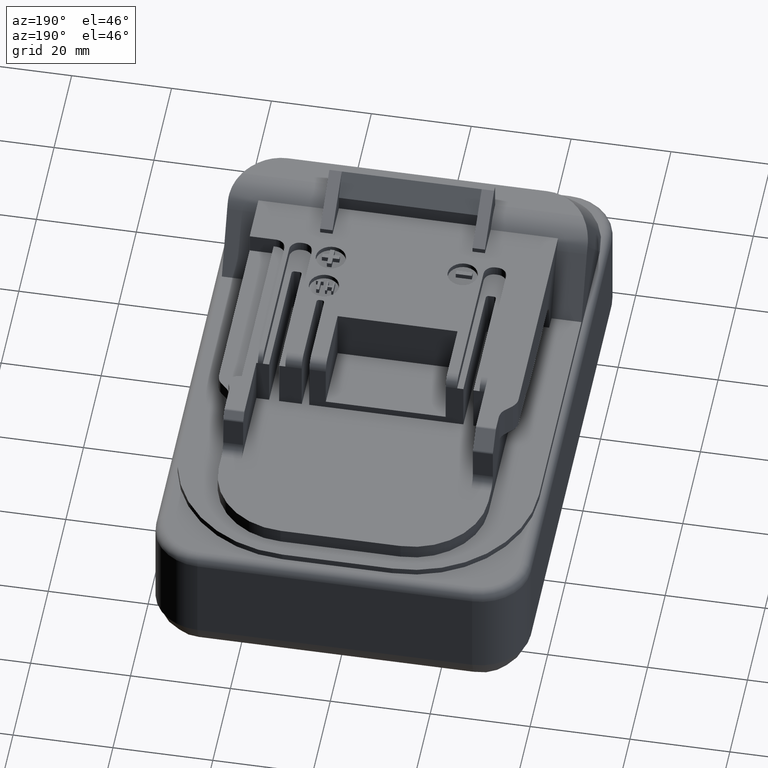
[diagram: clean part render]
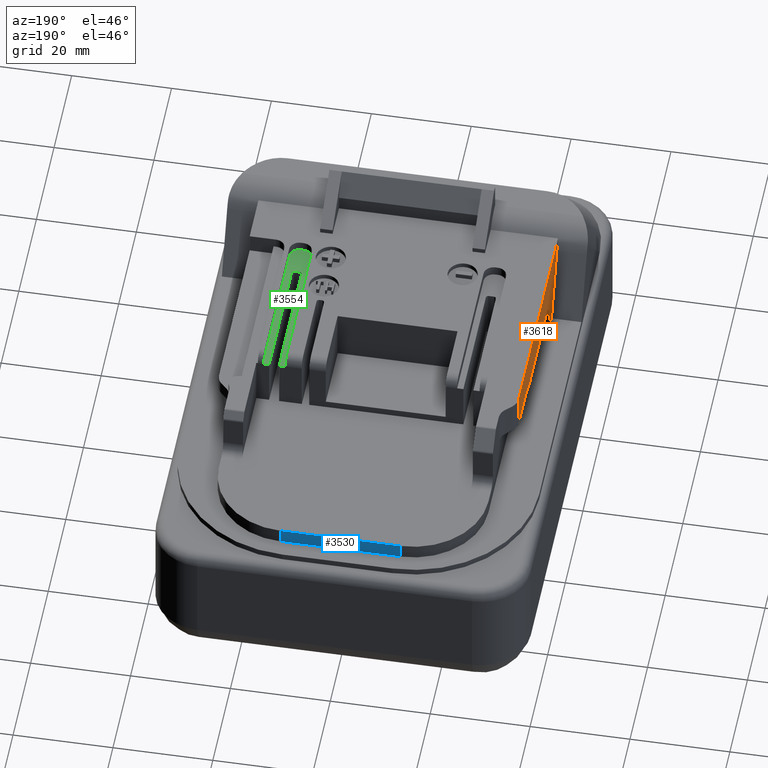
[diagram: same view with three faces highlighted in distinct colors, each labeled with its STEP entity id]
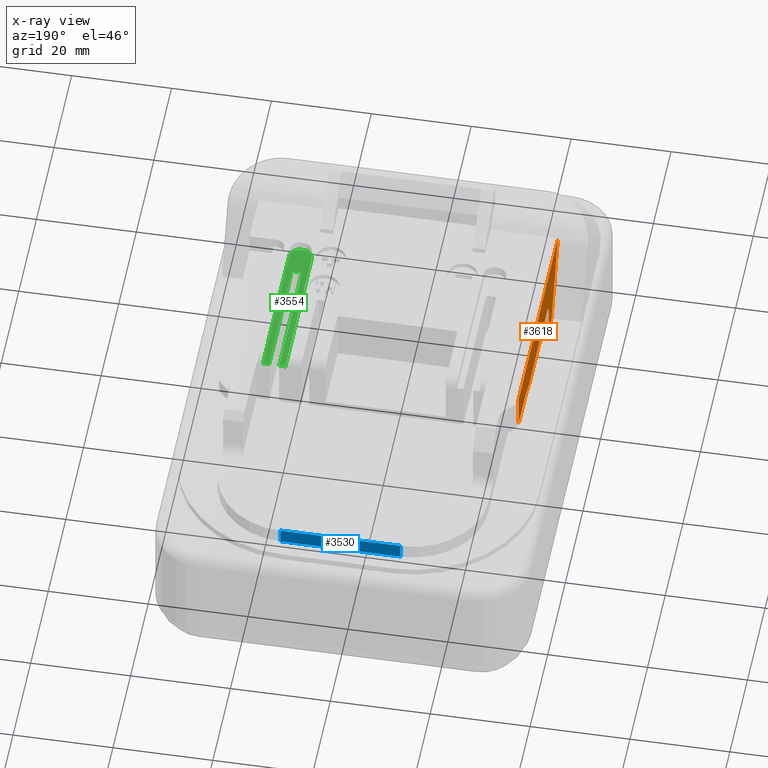
[diagram: x-ray of the same camera — body ghosted, the three highlighted faces saturated]
A machine part, auxiliary view with three faces highlighted in distinct colors.
The next image is the same camera in x-ray (body ghosted, the three faces saturated) — at least one of them is partly hidden behind the body in this view.
Their STEP definitions:

[orange] entity #3618 — the highlighted planar face has unit normal (1, 0, 0).
#123=PLANE('',#3941);
#397=LINE('',#5689,#801);
#401=LINE('',#5696,#805);
#407=LINE('',#5710,#811);
#410=LINE('',#5717,#814);
#411=LINE('',#5720,#815);
#417=LINE('',#5747,#821);
#487=LINE('',#5940,#891);
#488=LINE('',#5944,#892);
#801=VECTOR('',#4574,1.);
#805=VECTOR('',#4580,1.);
#811=VECTOR('',#4590,1.);
#814=VECTOR('',#4597,1.00000000000006);
#815=VECTOR('',#4600,1.);
#821=VECTOR('',#4622,1.00000000000006);
#891=VECTOR('',#4830,1.);
#892=VECTOR('',#4835,1.);
#1175=FACE_OUTER_BOUND('',#1372,.T.);
#1372=EDGE_LOOP('',(#3193,#3194,#3195,#3196,#3197,#3198,#3199,#3200,#3201,
#3202));
#1507=CIRCLE('',#3866,3.);
#1535=CIRCLE('',#3942,7.);
#1768=VERTEX_POINT('',#5686);
#1769=VERTEX_POINT('',#5688);
#1771=VERTEX_POINT('',#5694);
#1776=VERTEX_POINT('',#5707);
#1777=VERTEX_POINT('',#5709);
#1779=VERTEX_POINT('',#5715);
#1780=VERTEX_POINT('',#5719);
#1785=VERTEX_POINT('',#5745);
#1839=VERTEX_POINT('',#5938);
#1840=VERTEX_POINT('',#5942);
#2200=EDGE_CURVE('',#1768,#1769,#397,.T.);
#2204=EDGE_CURVE('',#1771,#1768,#401,.T.);
#2211=EDGE_CURVE('',#1776,#1777,#407,.T.);
#2215=EDGE_CURVE('',#1779,#1776,#410,.F.);
#2216=EDGE_CURVE('',#1780,#1779,#411,.T.);
#2220=EDGE_CURVE('',#1780,#1769,#1507,.T.);
#2227=EDGE_CURVE('',#1771,#1785,#417,.T.);
#2323=EDGE_CURVE('',#1777,#1839,#487,.T.);
#2324=EDGE_CURVE('',#1785,#1840,#1535,.F.);
#2325=EDGE_CURVE('',#1839,#1840,#488,.T.);
#3193=ORIENTED_EDGE('',*,*,#2200,.F.);
#3194=ORIENTED_EDGE('',*,*,#2204,.F.);
#3195=ORIENTED_EDGE('',*,*,#2227,.T.);
#3196=ORIENTED_EDGE('',*,*,#2324,.T.);
#3197=ORIENTED_EDGE('',*,*,#2325,.F.);
#3198=ORIENTED_EDGE('',*,*,#2323,.F.);
#3199=ORIENTED_EDGE('',*,*,#2211,.F.);
#3200=ORIENTED_EDGE('',*,*,#2215,.F.);
#3201=ORIENTED_EDGE('',*,*,#2216,.F.);
#3202=ORIENTED_EDGE('',*,*,#2220,.T.);
#3618=ADVANCED_FACE('',(#1175),#123,.F.);
#3866=AXIS2_PLACEMENT_3D('',#5726,#4607,#4608);
#3941=AXIS2_PLACEMENT_3D('',#5941,#4831,#4832);
#3942=AXIS2_PLACEMENT_3D('',#5943,#4833,#4834);
#4574=DIRECTION('',(0.,0.,1.));
#4580=DIRECTION('',(0.,1.,0.));
#4590=DIRECTION('',(0.,1.,0.));
#4597=DIRECTION('',(0.,-0.965925826288944,-0.258819045102985));
#4600=DIRECTION('',(0.,1.,0.));
#4607=DIRECTION('center_axis',(1.,0.,0.));
#4608=DIRECTION('ref_axis',(0.,-1.,0.));
#4622=DIRECTION('',(0.,-0.425797036329976,0.904818702200949));
#4830=DIRECTION('',(0.,0.,1.));
#4831=DIRECTION('center_axis',(1.,0.,0.));
#4832=DIRECTION('ref_axis',(0.,1.,0.));
#4833=DIRECTION('center_axis',(-1.,0.,0.));
#4834=DIRECTION('ref_axis',(0.,1.,0.));
#4835=DIRECTION('',(0.,-1.,0.));
#5686=CARTESIAN_POINT('',(-30.,141.6,29.3));
#5688=CARTESIAN_POINT('',(-30.,141.6,33.3));
#5689=CARTESIAN_POINT('',(-30.,141.6,31.3));
#5694=CARTESIAN_POINT('',(-30.,139.,29.3));
#5696=CARTESIAN_POINT('',(-30.,140.3,29.3));
#5707=CARTESIAN_POINT('',(-30.,168.5,37.5));
#5709=CARTESIAN_POINT('',(-30.,176.2573593129,37.5));
#5710=CARTESIAN_POINT('',(-30.,172.3786796564,37.5));
#5715=CARTESIAN_POINT('',(-30.,164.02153903092,36.3));
#5717=CARTESIAN_POINT('',(-30.,166.26076951546,36.9));
#5719=CARTESIAN_POINT('',(-30.,144.6,36.3));
#5720=CARTESIAN_POINT('',(-30.,154.31076951546,36.3));
#5726=CARTESIAN_POINT('Origin',(-30.,144.6,33.3));
#5745=CARTESIAN_POINT('',(-30.,132.8914921156,42.2805792543));
#5747=CARTESIAN_POINT('',(-30.,135.9457460578,35.7902896272));
#5938=CARTESIAN_POINT('',(-30.,176.2573593129,44.3));
#5940=CARTESIAN_POINT('',(-30.,176.2573593129,40.9));
#5941=CARTESIAN_POINT('Origin',(-30.,159.,-17.));
#5942=CARTESIAN_POINT('',(-30.,131.4567406858,44.3));
#5943=CARTESIAN_POINT('Origin',(-30.,126.5577612002,39.3));
#5944=CARTESIAN_POINT('',(-30.,153.85704999933,44.3));

[blue] entity #3530 — the highlighted planar face has unit normal (0, -1, 0).
#65=PLANE('',#3796);
#276=LINE('',#5371,#680);
#277=LINE('',#5374,#681);
#278=LINE('',#5376,#682);
#279=LINE('',#5377,#683);
#680=VECTOR('',#4329,1.);
#681=VECTOR('',#4332,1.);
#682=VECTOR('',#4333,1.);
#683=VECTOR('',#4334,1.);
#1087=FACE_OUTER_BOUND('',#1280,.T.);
#1280=EDGE_LOOP('',(#2678,#2679,#2680,#2681));
#1653=VERTEX_POINT('',#5367);
#1654=VERTEX_POINT('',#5369);
#1655=VERTEX_POINT('',#5373);
#1656=VERTEX_POINT('',#5375);
#2051=EDGE_CURVE('',#1654,#1653,#276,.F.);
#2052=EDGE_CURVE('',#1655,#1654,#277,.T.);
#2053=EDGE_CURVE('',#1655,#1656,#278,.F.);
#2054=EDGE_CURVE('',#1656,#1653,#279,.T.);
#2678=ORIENTED_EDGE('',*,*,#2051,.F.);
#2679=ORIENTED_EDGE('',*,*,#2052,.F.);
#2680=ORIENTED_EDGE('',*,*,#2053,.T.);
#2681=ORIENTED_EDGE('',*,*,#2054,.T.);
#3530=ADVANCED_FACE('',(#1087),#65,.F.);
#3796=AXIS2_PLACEMENT_3D('',#5372,#4330,#4331);
#4329=DIRECTION('',(0.,0.,-1.));
#4330=DIRECTION('center_axis',(0.,-1.,0.));
#4331=DIRECTION('ref_axis',(0.,0.,-1.));
#4332=DIRECTION('',(1.,0.,0.));
#4333=DIRECTION('',(0.,0.,-1.));
#4334=DIRECTION('',(1.,0.,0.));
#5367=CARTESIAN_POINT('',(12.,208.5,32.3));
#5369=CARTESIAN_POINT('',(12.,208.5,29.3));
#5371=CARTESIAN_POINT('',(12.,208.5,30.8));
#5372=CARTESIAN_POINT('Origin',(0.,208.5,32.3));
#5373=CARTESIAN_POINT('',(-12.,208.5,29.3));
#5374=CARTESIAN_POINT('',(1.7763568394E-15,208.5,29.3));
#5375=CARTESIAN_POINT('',(-12.,208.5,32.3));
#5376=CARTESIAN_POINT('',(-12.,208.5,36.8));
#5377=CARTESIAN_POINT('',(0.,208.5,32.3));

[green] entity #3554 — the highlighted planar face has unit normal (0, 0, 1).
#83=PLANE('',#3833);
#243=LINE('',#5279,#647);
#245=LINE('',#5288,#649);
#249=LINE('',#5300,#653);
#353=LINE('',#5577,#757);
#355=LINE('',#5581,#759);
#356=LINE('',#5583,#760);
#357=LINE('',#5587,#761);
#358=LINE('',#5590,#762);
#647=VECTOR('',#4244,1.);
#649=VECTOR('',#4254,1.);
#653=VECTOR('',#4266,1.);
#757=VECTOR('',#4480,1.);
#759=VECTOR('',#4484,1.);
#760=VECTOR('',#4485,1.);
#761=VECTOR('',#4488,1.);
#762=VECTOR('',#4491,1.);
#1111=FACE_OUTER_BOUND('',#1308,.T.);
#1308=EDGE_LOOP('',(#2833,#2834,#2835,#2836,#2837,#2838,#2839,#2840,#2841,
#2842,#2843,#2844));
#1470=CIRCLE('',#3772,0.5);
#1472=CIRCLE('',#3776,0.5);
#1492=CIRCLE('',#3834,2.);
#1493=CIRCLE('',#3835,2.);
#1619=VERTEX_POINT('',#5273);
#1621=VERTEX_POINT('',#5277);
#1623=VERTEX_POINT('',#5282);
#1624=VERTEX_POINT('',#5287);
#1627=VERTEX_POINT('',#5294);
#1628=VERTEX_POINT('',#5299);
#1726=VERTEX_POINT('',#5576);
#1727=VERTEX_POINT('',#5580);
#1728=VERTEX_POINT('',#5582);
#1729=VERTEX_POINT('',#5584);
#1730=VERTEX_POINT('',#5586);
#1731=VERTEX_POINT('',#5588);
#2005=EDGE_CURVE('',#1621,#1619,#243,.T.);
#2008=EDGE_CURVE('',#1623,#1619,#1470,.F.);
#2009=EDGE_CURVE('',#1623,#1624,#245,.T.);
#2014=EDGE_CURVE('',#1627,#1624,#1472,.F.);
#2015=EDGE_CURVE('',#1628,#1627,#249,.T.);
#2144=EDGE_CURVE('',#1726,#1628,#353,.T.);
#2146=EDGE_CURVE('',#1621,#1727,#355,.T.);
#2147=EDGE_CURVE('',#1727,#1728,#356,.F.);
#2148=EDGE_CURVE('',#1728,#1729,#1492,.F.);
#2149=EDGE_CURVE('',#1729,#1730,#357,.T.);
#2150=EDGE_CURVE('',#1730,#1731,#1493,.F.);
#2151=EDGE_CURVE('',#1731,#1726,#358,.F.);
#2833=ORIENTED_EDGE('',*,*,#2008,.T.);
#2834=ORIENTED_EDGE('',*,*,#2005,.F.);
#2835=ORIENTED_EDGE('',*,*,#2146,.T.);
#2836=ORIENTED_EDGE('',*,*,#2147,.T.);
#2837=ORIENTED_EDGE('',*,*,#2148,.T.);
#2838=ORIENTED_EDGE('',*,*,#2149,.T.);
#2839=ORIENTED_EDGE('',*,*,#2150,.T.);
#2840=ORIENTED_EDGE('',*,*,#2151,.T.);
#2841=ORIENTED_EDGE('',*,*,#2144,.T.);
#2842=ORIENTED_EDGE('',*,*,#2015,.T.);
#2843=ORIENTED_EDGE('',*,*,#2014,.T.);
#2844=ORIENTED_EDGE('',*,*,#2009,.F.);
#3554=ADVANCED_FACE('',(#1111),#83,.T.);
#3772=AXIS2_PLACEMENT_3D('',#5285,#4250,#4251);
#3776=AXIS2_PLACEMENT_3D('',#5297,#4262,#4263);
#3833=AXIS2_PLACEMENT_3D('',#5579,#4482,#4483);
#3834=AXIS2_PLACEMENT_3D('',#5585,#4486,#4487);
#3835=AXIS2_PLACEMENT_3D('',#5589,#4489,#4490);
#4244=DIRECTION('',(0.,-1.,0.));
#4250=DIRECTION('center_axis',(0.,0.,1.));
#4251=DIRECTION('ref_axis',(-1.,0.,0.));
#4254=DIRECTION('',(1.,0.,0.));
#4262=DIRECTION('center_axis',(0.,0.,1.));
#4263=DIRECTION('ref_axis',(-1.,0.,0.));
#4266=DIRECTION('',(0.,-1.,0.));
#4480=DIRECTION('',(-1.,0.,0.));
#4482=DIRECTION('center_axis',(0.,0.,1.));
#4483=DIRECTION('ref_axis',(1.,0.,0.));
#4484=DIRECTION('',(-1.,0.,0.));
#4485=DIRECTION('',(0.,1.,0.));
#4486=DIRECTION('center_axis',(0.,0.,-1.));
#4487=DIRECTION('ref_axis',(1.,0.,0.));
#4488=DIRECTION('',(1.,0.,0.));
#4489=DIRECTION('center_axis',(0.,0.,-1.));
#4490=DIRECTION('ref_axis',(1.,0.,0.));
#4491=DIRECTION('',(0.,-1.,0.));
#5273=CARTESIAN_POINT('',(18.45,148.,42.3));
#5277=CARTESIAN_POINT('',(18.45,173.5,42.3));
#5279=CARTESIAN_POINT('',(18.45,160.75,42.3));
#5282=CARTESIAN_POINT('',(18.95,147.5,42.3));
#5285=CARTESIAN_POINT('Origin',(18.95,148.,42.3));
#5287=CARTESIAN_POINT('',(19.95,147.5,42.3));
#5288=CARTESIAN_POINT('',(19.45,147.5,42.3));
#5294=CARTESIAN_POINT('',(20.45,148.,42.3));
#5297=CARTESIAN_POINT('Origin',(19.95,148.,42.3));
#5299=CARTESIAN_POINT('',(20.45,173.5,42.3));
#5300=CARTESIAN_POINT('',(20.45,160.75,42.3));
#5576=CARTESIAN_POINT('',(21.7,173.5,42.3));
#5577=CARTESIAN_POINT('',(21.075,173.5,42.3));
#5579=CARTESIAN_POINT('Origin',(0.,159.,42.3));
#5580=CARTESIAN_POINT('',(17.2,173.5,42.3));
#5581=CARTESIAN_POINT('',(17.825,173.5,42.3));
#5582=CARTESIAN_POINT('',(17.2,143.4567406858,42.3));
#5583=CARTESIAN_POINT('',(17.2,158.478370342889,42.3));
#5584=CARTESIAN_POINT('',(19.2,141.4567406858,42.3));
#5585=CARTESIAN_POINT('Origin',(19.2,143.4567406858,42.3));
#5586=CARTESIAN_POINT('',(19.7,141.4567406858,42.3));
#5587=CARTESIAN_POINT('',(19.45,141.4567406858,42.3));
#5588=CARTESIAN_POINT('',(21.7,143.4567406858,42.3));
#5589=CARTESIAN_POINT('Origin',(19.7,143.4567406858,42.3));
#5590=CARTESIAN_POINT('',(21.7,158.478370342889,42.3));